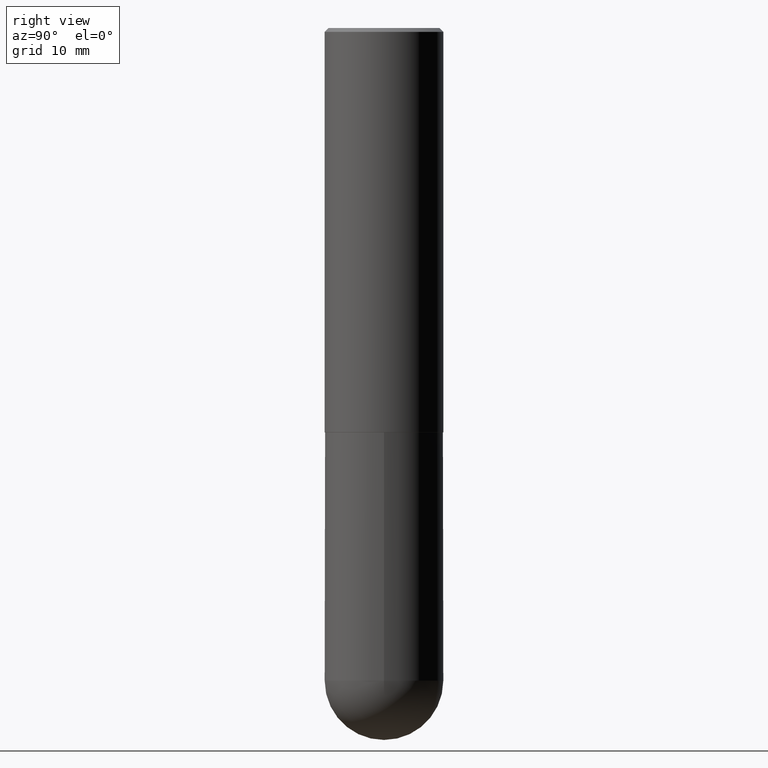
[diagram: clean part render]
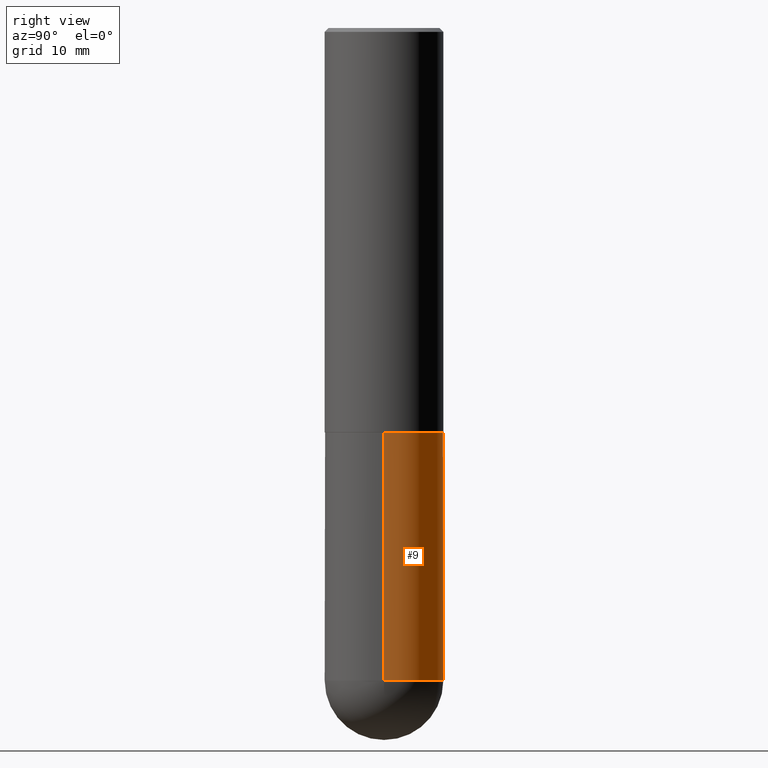
[diagram: same view with one face highlighted and labeled with its STEP entity id]
A machine part, right view. The second image highlights one B-rep face of the part: STEP entity #9.
In plain terms, the highlighted cylindrical surface (partial cylindrical patch) has radius 7.9375 mm, axis along (-0, 0, 1).
Its self-contained STEP definition (entity closure, byte-faithful):
#9 = ADVANCED_FACE ( 'NONE', ( #399 ), #370, .T. ) ;
#12 = VERTEX_POINT ( 'NONE', #248 ) ;
#23 = CIRCLE ( 'NONE', #390, 0.3125000000000000000 ) ;
#27 = CARTESIAN_POINT ( 'NONE',  ( 0.3125000000000000000, -2.182175836776958347E-15, 1.523805242436230075E-29 ) ) ;
#29 = LINE ( 'NONE', #356, #150 ) ;
#32 = AXIS2_PLACEMENT_3D ( 'NONE', #157, #405, #60 ) ;
#36 = DIRECTION ( 'NONE',  ( -2.445468806185136597E-29, 3.491481338843145583E-15, 1.000000000000000000 ) ) ;
#43 = DIRECTION ( 'NONE',  ( -2.445468806185136597E-29, 3.491481338843145583E-15, 1.000000000000000000 ) ) ;
#44 = CARTESIAN_POINT ( 'NONE',  ( -0.3125000000000000000, -7.498965127754292608E-15, -2.129999999999999893 ) ) ;
#60 = DIRECTION ( 'NONE',  ( 1.000000000000000000, -6.982962677686265133E-15, 0.000000000000000000 ) ) ;
#74 = CARTESIAN_POINT ( 'NONE',  ( 8.406299021261405930E-29, -1.200196710227331114E-14, -3.437499999999999556 ) ) ;
#91 = EDGE_CURVE ( 'NONE', #12, #385, #29, .T. ) ;
#93 = EDGE_CURVE ( 'NONE', #174, #385, #328, .T. ) ;
#99 = EDGE_CURVE ( 'NONE', #185, #174, #290, .T. ) ;
#127 = CIRCLE ( 'NONE', #263, 0.3125000000000000000 ) ;
#140 = CARTESIAN_POINT ( 'NONE',  ( 0.3125000000000000000, -1.190158701378156719E-14, -3.437499999999999556 ) ) ;
#141 = ORIENTED_EDGE ( 'NONE', *, *, #321, .T. ) ;
#150 = VECTOR ( 'NONE', #319, 39.37007874015748143 ) ;
#157 = CARTESIAN_POINT ( 'NONE',  ( 5.208848557174341041E-29, -7.436855251735900237E-15, -2.129999999999999893 ) ) ;
#174 = VERTEX_POINT ( 'NONE', #360 ) ;
#185 = VERTEX_POINT ( 'NONE', #140 ) ;
#190 = DIRECTION ( 'NONE',  ( -2.445468806185136877E-29, 3.491481338843145188E-15, 1.000000000000000000 ) ) ;
#193 = EDGE_CURVE ( 'NONE', #185, #304, #23, .T. ) ;
#198 = CARTESIAN_POINT ( 'NONE',  ( 2.182175836777041572E-15, 0.3124999999999878431, -3.437500000000000888 ) ) ;
#214 = DIRECTION ( 'NONE',  ( 1.000000000000000000, -6.982962677686266711E-15, 4.876176775795936353E-29 ) ) ;
#233 = CARTESIAN_POINT ( 'NONE',  ( 8.406299021261405930E-29, -1.200196710227331114E-14, -3.437499999999999556 ) ) ;
#248 = CARTESIAN_POINT ( 'NONE',  ( -0.3125000000000000000, -7.498965127754294186E-15, -3.437499999999999556 ) ) ;
#263 = AXIS2_PLACEMENT_3D ( 'NONE', #233, #297, #266 ) ;
#266 = DIRECTION ( 'NONE',  ( 1.000000000000000000, -6.982962677686269077E-15, 0.000000000000000000 ) ) ;
#290 = LINE ( 'NONE', #27, #336 ) ;
#297 = DIRECTION ( 'NONE',  ( -2.445468806185136597E-29, 3.491481338843145583E-15, 1.000000000000000000 ) ) ;
#304 = VERTEX_POINT ( 'NONE', #198 ) ;
#314 = ORIENTED_EDGE ( 'NONE', *, *, #93, .F. ) ;
#319 = DIRECTION ( 'NONE',  ( -2.445468806185136877E-29, 3.491481338843145188E-15, 1.000000000000000000 ) ) ;
#321 = EDGE_CURVE ( 'NONE', #304, #12, #127, .T. ) ;
#328 = CIRCLE ( 'NONE', #32, 0.3125000000000000000 ) ;
#336 = VECTOR ( 'NONE', #190, 39.37007874015748143 ) ;
#338 = CARTESIAN_POINT ( 'NONE',  ( 0.000000000000000000, 0.000000000000000000, 0.000000000000000000 ) ) ;
#344 = EDGE_LOOP ( 'NONE', ( #141, #347, #314, #398, #354 ) ) ;
#347 = ORIENTED_EDGE ( 'NONE', *, *, #91, .T. ) ;
#354 = ORIENTED_EDGE ( 'NONE', *, *, #193, .T. ) ;
#356 = CARTESIAN_POINT ( 'NONE',  ( -0.3125000000000000000, 2.220446049250313081E-15, -1.537167215704658232E-29 ) ) ;
#358 = DIRECTION ( 'NONE',  ( 1.000000000000000000, -6.982962677686269077E-15, 0.000000000000000000 ) ) ;
#360 = CARTESIAN_POINT ( 'NONE',  ( 0.3125000000000000000, -9.619031088512858584E-15, -2.129999999999999893 ) ) ;
#370 = CYLINDRICAL_SURFACE ( 'NONE', #389, 0.3125000000000000000 ) ;
#385 = VERTEX_POINT ( 'NONE', #44 ) ;
#389 = AXIS2_PLACEMENT_3D ( 'NONE', #338, #43, #214 ) ;
#390 = AXIS2_PLACEMENT_3D ( 'NONE', #74, #36, #358 ) ;
#398 = ORIENTED_EDGE ( 'NONE', *, *, #99, .F. ) ;
#399 = FACE_OUTER_BOUND ( 'NONE', #344, .T. ) ;
#405 = DIRECTION ( 'NONE',  ( -2.445468806185136597E-29, 3.491481338843145583E-15, 1.000000000000000000 ) ) ;